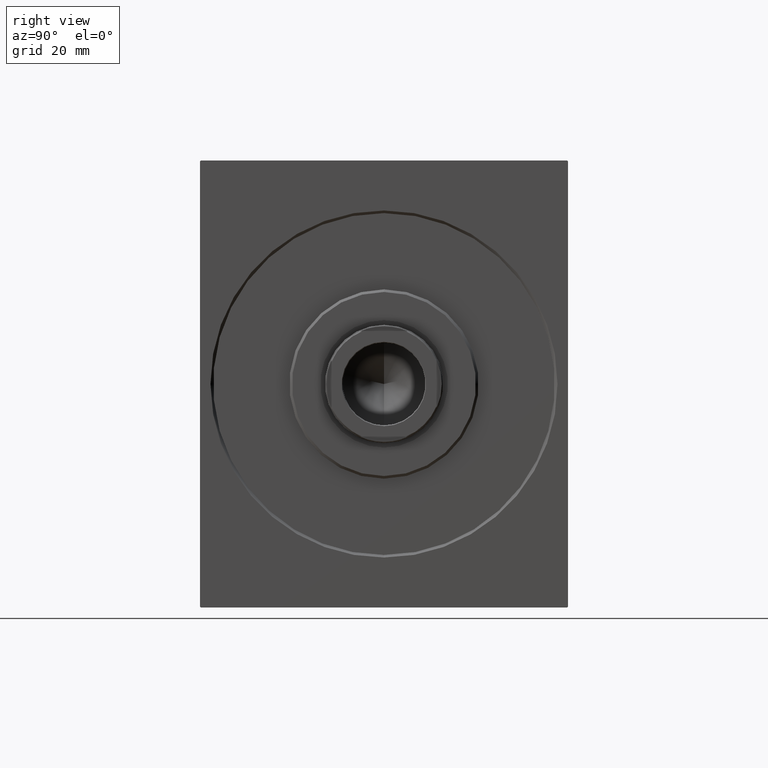
[diagram: clean part render]
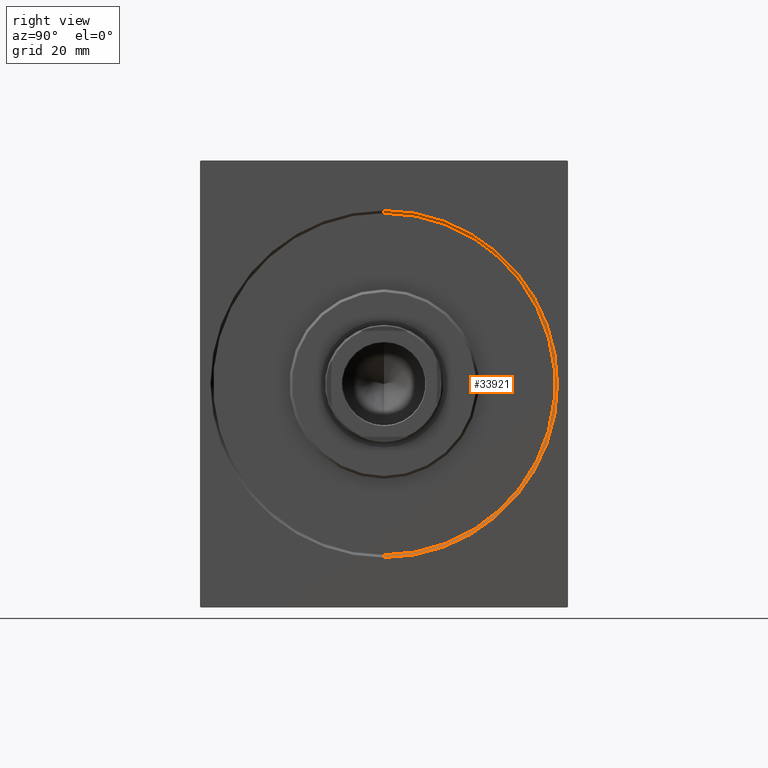
[diagram: same view with one face highlighted and labeled with its STEP entity id]
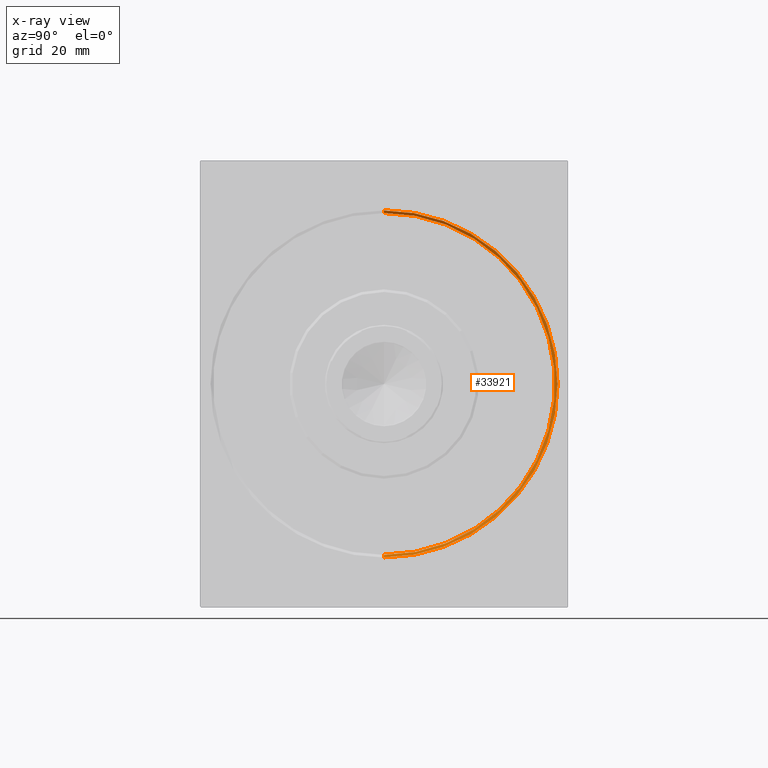
[diagram: x-ray of the same camera — body ghosted, the highlighted face saturated]
A machine part, right view. The second image highlights one B-rep face of the part: STEP entity #33921.
The next image is the same camera in x-ray: the body ghosted, the highlighted face saturated — about 0% of this face is hidden behind the body in this view.
In plain terms, the highlighted conical surface has half-angle 45 deg.
Its self-contained STEP definition (entity closure, byte-faithful):
#122 = CARTESIAN_POINT ( 'NONE',  ( 0.000000000000000000, 0.000000000000000000, 65.99999999999994316 ) ) ;
#310 = DIRECTION ( 'NONE',  ( 0.000000000000000000, 0.000000000000000000, -1.000000000000000000 ) ) ;
#345 = VECTOR ( 'NONE', #40561, 1000.000000000000114 ) ;
#1693 = CARTESIAN_POINT ( 'NONE',  ( 0.9999999999999453770, 0.000000000000000000, 0.000000000000000000 ) ) ;
#2025 = ORIENTED_EDGE ( 'NONE', *, *, #31356, .F. ) ;
#6951 = CARTESIAN_POINT ( 'NONE',  ( 0.9999999999999453770, 0.000000000000000000, 0.000000000000000000 ) ) ;
#7166 = DIRECTION ( 'NONE',  ( 0.000000000000000000, 0.000000000000000000, -1.000000000000000000 ) ) ;
#7754 = AXIS2_PLACEMENT_3D ( 'NONE', #6951, #23506, #7166 ) ;
#7756 = ORIENTED_EDGE ( 'NONE', *, *, #24359, .F. ) ;
#8958 = EDGE_CURVE ( 'NONE', #16020, #34413, #9128, .T. ) ;
#9128 = LINE ( 'NONE', #15145, #11261 ) ;
#10014 = DIRECTION ( 'NONE',  ( 1.000000000000000000, 0.000000000000000000, -0.000000000000000000 ) ) ;
#11115 = DIRECTION ( 'NONE',  ( -0.7071067811865474617, 0.000000000000000000, 0.7071067811865474617 ) ) ;
#11261 = VECTOR ( 'NONE', #11115, 1000.000000000000114 ) ;
#12223 = ORIENTED_EDGE ( 'NONE', *, *, #8958, .F. ) ;
#12370 = ORIENTED_EDGE ( 'NONE', *, *, #17578, .T. ) ;
#15145 = CARTESIAN_POINT ( 'NONE',  ( 0.9999999999999453770, 0.000000000000000000, 65.00000000000000000 ) ) ;
#16020 = VERTEX_POINT ( 'NONE', #35538 ) ;
#16256 = CARTESIAN_POINT ( 'NONE',  ( 0.000000000000000000, 0.000000000000000000, 0.000000000000000000 ) ) ;
#16867 = DIRECTION ( 'NONE',  ( -1.000000000000000000, 0.000000000000000000, 0.000000000000000000 ) ) ;
#17578 = EDGE_CURVE ( 'NONE', #24205, #25586, #30840, .T. ) ;
#17674 = CIRCLE ( 'NONE', #26599, 65.99999999999994316 ) ;
#19411 = AXIS2_PLACEMENT_3D ( 'NONE', #1693, #16867, #24504 ) ;
#23506 = DIRECTION ( 'NONE',  ( -1.000000000000000000, 0.000000000000000000, 0.000000000000000000 ) ) ;
#24205 = VERTEX_POINT ( 'NONE', #36365 ) ;
#24359 = EDGE_CURVE ( 'NONE', #34413, #25586, #17674, .T. ) ;
#24504 = DIRECTION ( 'NONE',  ( 0.000000000000000000, 0.000000000000000000, 1.000000000000000000 ) ) ;
#25586 = VERTEX_POINT ( 'NONE', #40504 ) ;
#26298 = CIRCLE ( 'NONE', #7754, 65.00000000000000000 ) ;
#26599 = AXIS2_PLACEMENT_3D ( 'NONE', #16256, #10014, #310 ) ;
#27399 = CARTESIAN_POINT ( 'NONE',  ( 0.9999999999999453770, 7.960204194457797252E-15, -65.00000000000000000 ) ) ;
#30840 = LINE ( 'NONE', #27399, #345 ) ;
#31356 = EDGE_CURVE ( 'NONE', #24205, #16020, #26298, .T. ) ;
#33921 = ADVANCED_FACE ( 'NONE', ( #37860 ), #37271, .F. ) ;
#34413 = VERTEX_POINT ( 'NONE', #122 ) ;
#35538 = CARTESIAN_POINT ( 'NONE',  ( 0.9999999999999453770, 0.000000000000000000, 65.00000000000000000 ) ) ;
#36365 = CARTESIAN_POINT ( 'NONE',  ( 0.9999999999999453770, 7.960204194457797252E-15, -65.00000000000000000 ) ) ;
#37271 = CONICAL_SURFACE ( 'NONE', #19411, 65.00000000000000000, 0.7853981633974482790 ) ;
#37860 = FACE_OUTER_BOUND ( 'NONE', #38216, .T. ) ;
#38216 = EDGE_LOOP ( 'NONE', ( #2025, #12370, #7756, #12223 ) ) ;
#40504 = CARTESIAN_POINT ( 'NONE',  ( 0.000000000000000000, 8.082668874372526089E-15, -65.99999999999994316 ) ) ;
#40561 = DIRECTION ( 'NONE',  ( -0.7071067811865474617, 8.659560562354932858E-17, -0.7071067811865474617 ) ) ;